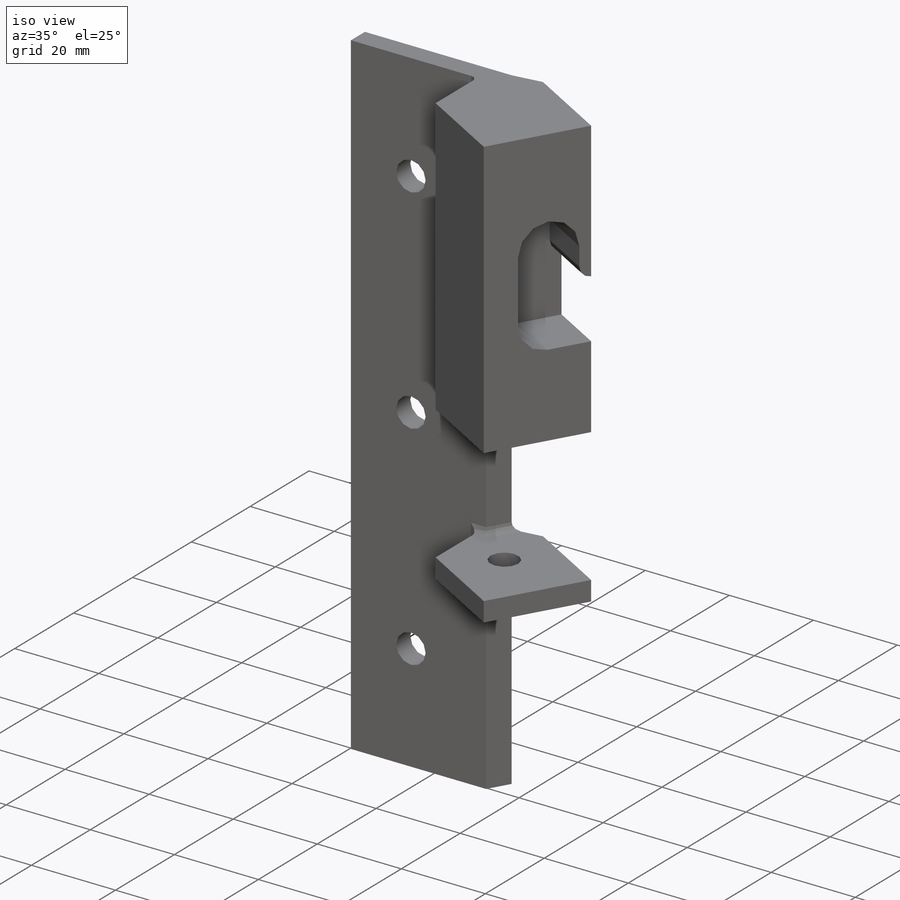
[diagram: iso view]
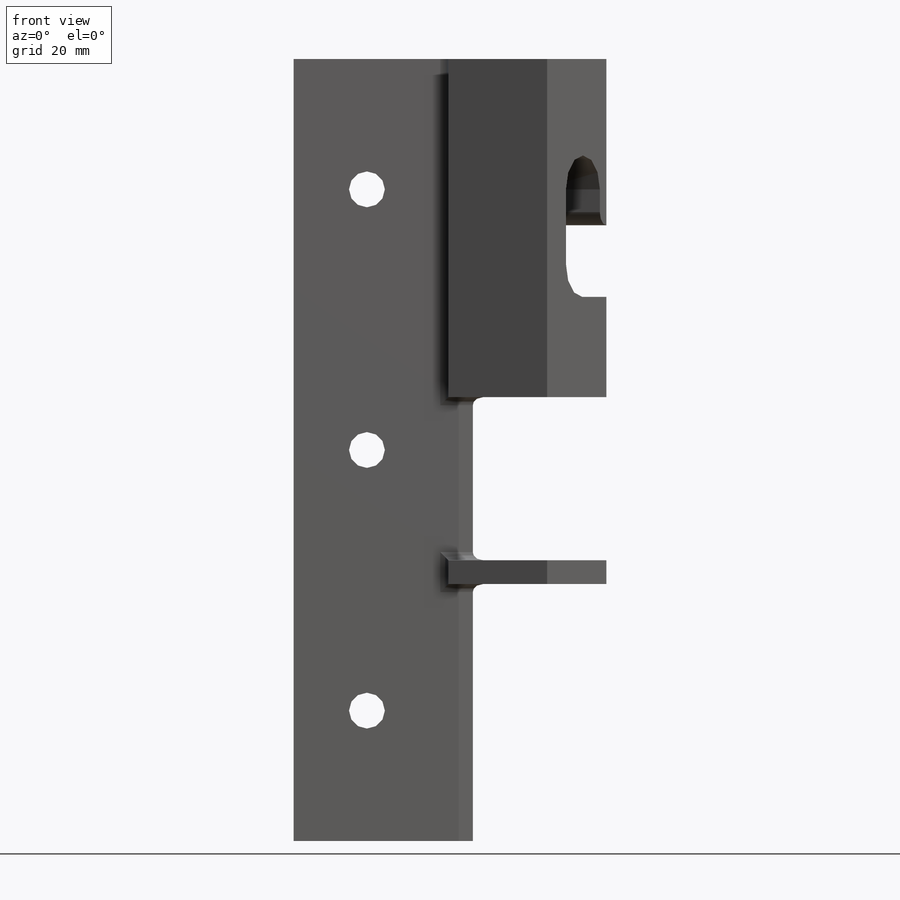
[diagram: front view]
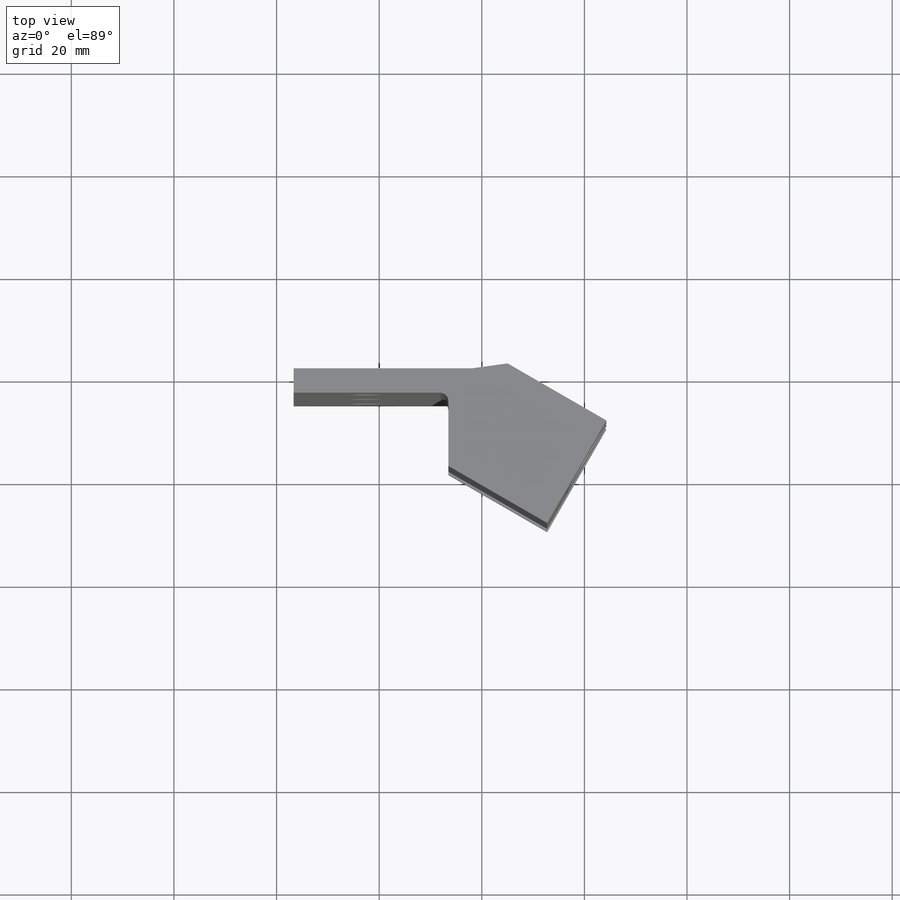
[diagram: top view]
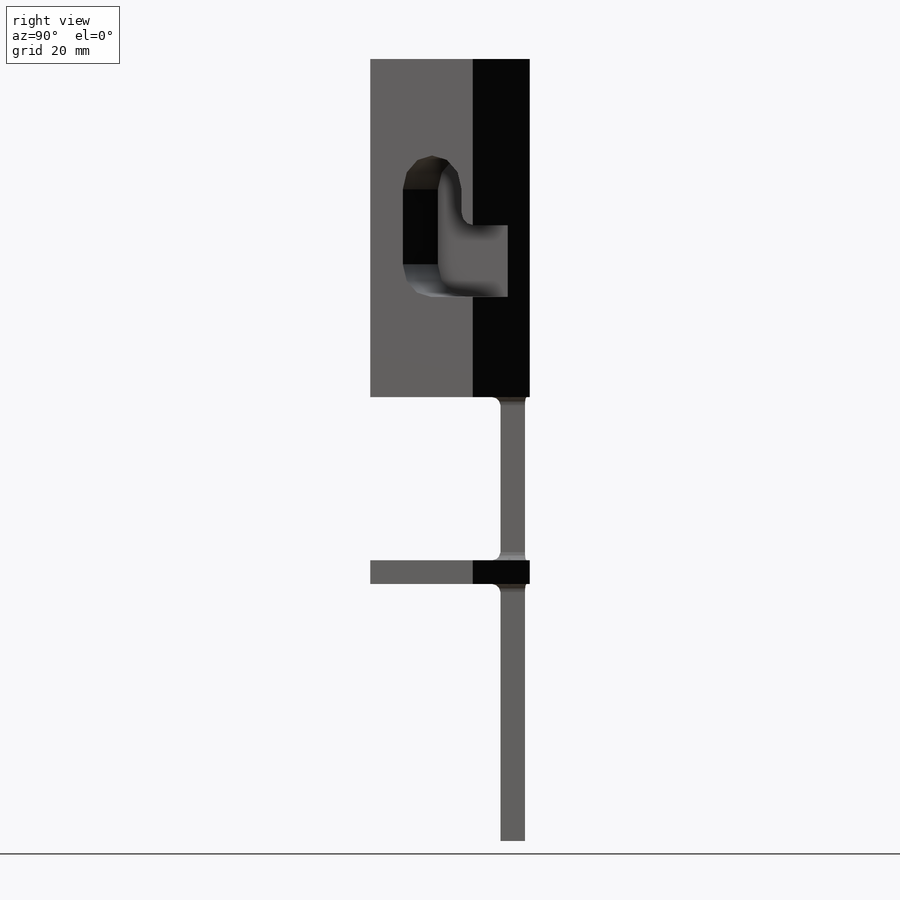
[diagram: right view]
SOLIDWORKS PART (.sldprt)
format: sldprt  version: not decoded by parser v0  size: 513,536 bytes
history: native  units: mm
features: sketch x16, cut_extrude x7, extrude x5, fillet x3, hole x2, plane x2, material x1 + 1 further entry (+12 scaffold rows collapsed)
feature tree (49):
  scaffold x12  (default folders/planes/origin — collapsed)
  material  "AISI 304"
  "Origin"  ID=-1
  sketch  "Sketch1"  dims[D1=152.4mm D2=34.925mm D3=76.2mm D4=~13.49375mm]
  extrude  "Boss-Extrude1"  Depth=4.7625mm
  sketch  "Sketch2"  dims[D1=152.4mm D2=19.05mm]
  extrude  "Boss-Extrude2"  Depth=4.7625mm
  hole  "1/4 Clearance Hole1"  Diameter=6.985mm Depth=4.7625mm
  sketch  "Sketch4"  dims[D1=50.8mm D2=50.8mm D3=25.4mm D4=19.05mm D5=19.05mm D6=19.05mm]
  sketch  "Sketch3"  dims[hole-wizard template sketch: 59 standard entries collapsed; hole parameters kept: c18.Thru Hole Dia.=6.985mm c18.Thru Hole Depth=4.7625mm]
  plane  "Plane1"
  sketch  "Sketch5"  dims[D1=~4.209923mm]
  extrude  "Boss-Extrude3"  Depth=15.875mm
  sketch  "Sketch6"
  extrude  "Boss-Extrude4"  [1 undecoded]
  plane  "Plane2"
  sketch  "Sketch8"  dims[D1=~50.076151mm D2=22.225mm]
  cut_extrude  "Cut-Extrude2"  Depth=41.275mm
  sketch  "Sketch9"
  cut_extrude  "Cut-Extrude3"  [1 undecoded]
  sketch  "Sketch10"  dims[c1.D1=17.4625mm c1.D2=31.7881mm c1.D3=3.175mm c1.D4=33.655mm c2.D1=~21.275554mm c2.D3=4.6355mm]
  cut_extrude  "Cut-Extrude4"  Depth=41.275mm
  sketch  "Sketch7"  dims[c1.D3=6.604mm c1.D2=25.4mm c2.D2=16.8deg c2.D4=6.985mm c3.D2=15.875mm c4.D2=16.8deg c4.D5=15.875mm c5.D5=16.8deg c5.D6=~11.58132mm c5.D2=~11.58132mm c6.D2=16.8deg c6.D5=~7.17456mm c7.D5=16.8deg c7.D1=4.7625mm]
  cut_extrude  "Cut-Extrude1"  [1 undecoded]
  hole  "#5 (0.2055) Diameter Hole1"  Diameter=5.2197mm Depth=12.954mm
  sketch  "Sketch12"  dims[c1.D1=~7.191934mm c1.D2=~6.868338mm c2.D1=9.525mm c2.D2=9.525mm c2.D3=~20.338398mm c3.D3=16.8deg c3.D4=4.7625mm c3.D1=~11.58132mm c4.D3=4.7625mm]
  sketch  "Sketch11"  dims[hole-wizard template sketch: 46 standard entries collapsed; hole parameters kept: c15.Hole Dia.=5.2197mm c15.Hole Depth=12.954mm c15.D3=~14.816244mm c15.Drill Angle=118.0deg]
  sketch  "Sketch13"  dims[c1.D2=6.604mm c1.D1=25.4mm c1.D3=13.97mm c1.D4=6.985mm c1.D5=~13.64944mm c2.D1=25.4mm c2.D5=9.144mm c2.D3=6.985mm c2.D4=13.97mm]
  cut_extrude  "Cut-Extrude5"  Depth=7.3025mm
  fillet  "Fillet3"  Radius=2.54mm
  fillet  "Fillet4"  Radius=6.35mm
  sketch  "Sketch14"  dims[c1.D1=31.7881mm c1.D2=3.175mm c1.D3=15.875mm c1.D4=~33.38962mm c2.D2=4.6355mm]
  cut_extrude  "Cut-Extrude6"  [1 undecoded]
  fillet  "Fillet2"  Radius=1.5875mm
  sketch  "Sketch15"
  extrude  "Boss-Extrude5"  Depth=6.35mm
  sketch  "Sketch16"  dims[D1=4.7625mm]
  cut_extrude  "Cut-Extrude7"  [1 undecoded]
decode coverage: 25 of 33 modeling features carry decoded parameters; 1 rows unclassified (native names shown)
note: ~ marks probable driven/reference dimensions
note: 5 parameter values undecoded
summary: no parameter record found for 5 features
note: suppression state not decoded; provenance and decode notes live in map.json
